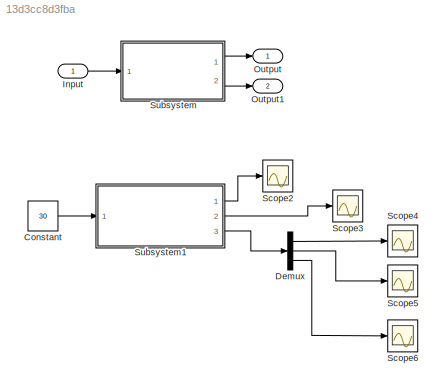
MODEL slx_13d3cc8d3fba
KIND model
CONFIG AbsTol = auto
CONFIG EnableMultiTasking = off
CONFIG FixedStep = auto
CONFIG MaxStep = auto
CONFIG MinStep = auto
CONFIG RelTol = 1e-3
CONFIG SampleTimeConstraint = Unconstrained
CONFIG SolverName = ode45
CONFIG StartTime = 0.0
CONFIG StopTime = 10
BLOCK [Constant] Constant
  Commented = on
  Value = 30
BLOCK [Demux] Demux
  Commented = on
  Outputs = 3
  Ports = [1, 3]
BLOCK [Inport] Input
BLOCK [Outport] Output
BLOCK [Outport] Output1
  Port = 2
BLOCK [Scope] Scope2
  Commented = on
  Floating = off
  NumInputPorts = 1
  Ports = [1]
  ScopeSpecificationString = Simulink.scopes.TimeScopeBlockCfg('CurrentConfiguration', extmgr.ConfigurationSet(extmgr.Configuration('Core','General UI',true),extmgr.Configuration('Core','Source UI',true),extmgr.Configuration('Sources','WiredSimulink',true,'DataLoggingVariableName','ScopeData1'),extmgr.Configuration('Visuals','Time Domain',true,'SerializedDisplays',{struct('MinYLimReal','-0.08031','MaxYLimReal','0.72277','YLab...<+1425ch>
BLOCK [Scope] Scope3
  Commented = on
  Floating = off
  NumInputPorts = 1
  Ports = [1]
  ScopeSpecificationString = Simulink.scopes.TimeScopeBlockCfg('CurrentConfiguration', extmgr.ConfigurationSet(extmgr.Configuration('Core','General UI',true),extmgr.Configuration('Core','Source UI',true),extmgr.Configuration('Sources','WiredSimulink',true,'DataLoggingVariableName','ScopeData2'),extmgr.Configuration('Visuals','Time Domain',true,'SerializedDisplays',{struct('MinYLimReal','-1.16097','MaxYLimReal','1.89286','YLab...<+1400ch>
BLOCK [Scope] Scope4
  Commented = on
  Floating = off
  NumInputPorts = 1
  Ports = [1]
  ScopeSpecificationString = Simulink.scopes.TimeScopeBlockCfg('CurrentConfiguration', extmgr.ConfigurationSet(extmgr.Configuration('Core','General UI',true),extmgr.Configuration('Core','Source UI',true),extmgr.Configuration('Sources','WiredSimulink',true,'DataLoggingVariableName','ScopeData3'),extmgr.Configuration('Visuals','Time Domain',true,'SerializedDisplays',{struct('MinYLimReal','-0.47901','MaxYLimReal','0.47901','YLab...<+1366ch>
BLOCK [Scope] Scope5
  Commented = on
  Floating = off
  NumInputPorts = 1
  Ports = [1]
  ScopeSpecificationString = Simulink.scopes.TimeScopeBlockCfg('CurrentConfiguration', extmgr.ConfigurationSet(extmgr.Configuration('Core','General UI',true),extmgr.Configuration('Core','Source UI',true),extmgr.Configuration('Sources','WiredSimulink',true,'DataLoggingVariableName','ScopeData4'),extmgr.Configuration('Visuals','Time Domain',true,'SerializedDisplays',{struct('MinYLimReal','-2.74982','MaxYLimReal','2.74854','YLab...<+1366ch>
BLOCK [Scope] Scope6
  Commented = on
  Floating = off
  NumInputPorts = 1
  Ports = [1]
  ScopeSpecificationString = Simulink.scopes.TimeScopeBlockCfg('CurrentConfiguration', extmgr.ConfigurationSet(extmgr.Configuration('Core','General UI',true),extmgr.Configuration('Core','Source UI',true),extmgr.Configuration('Sources','WiredSimulink',true,'DataLoggingVariableName','ScopeData5'),extmgr.Configuration('Visuals','Time Domain',true,'SerializedDisplays',{struct('MinYLimReal','-13.23232','MaxYLimReal','13.23657','YL...<+1372ch>
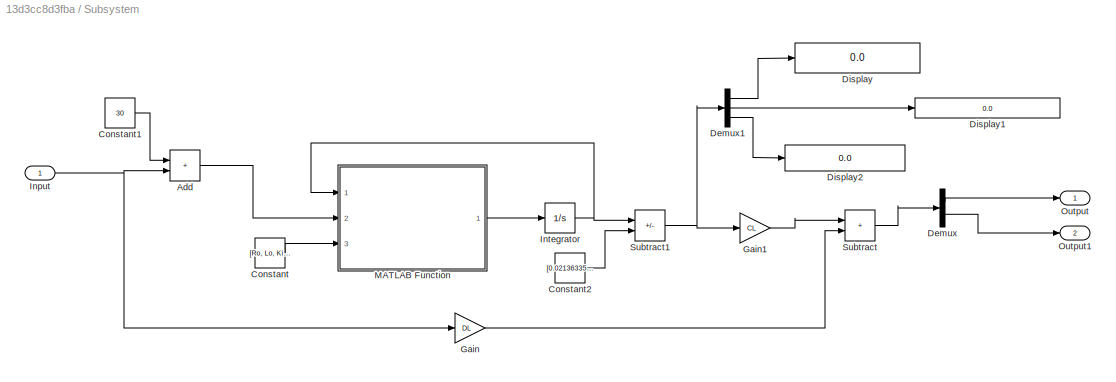
BLOCK [SubSystem] Subsystem
  Ports = [1, 2]
  RequestExecContextInheritance = off
BLOCK [Sum] Subsystem/Add
  IconShape = rectangular
  Ports = [2, 1]
BLOCK [Constant] Subsystem/Constant
  Value = [Ro, Lo, Kio, Kvo, Jmo, Jlo, Bmo, Blo, no, go, do, mo]
BLOCK [Constant] Subsystem/Constant1
  Value = 30
BLOCK [Constant] Subsystem/Constant2
  Value = [0.021363357520018;38.80690895243;4.1124038156736]
BLOCK [Demux] Subsystem/Demux
  Outputs = 2
  Ports = [1, 2]
BLOCK [Demux] Subsystem/Demux1
  Outputs = 3
  Ports = [1, 3]
BLOCK [Display] Subsystem/Display
  Decimation = 1
  Format = long
  Ports = [1]
BLOCK [Display] Subsystem/Display1
  Decimation = 1
  Format = long
  Ports = [1]
BLOCK [Display] Subsystem/Display2
  Decimation = 1
  Format = long
  Ports = [1]
BLOCK [Gain] Subsystem/Gain
  Gain = DL
  Multiplication = Matrix(K*u)
BLOCK [Gain] Subsystem/Gain1
  Gain = CL
  Multiplication = Matrix(K*u)
BLOCK [Inport] Subsystem/Input
BLOCK [Integrator] Subsystem/Integrator
  InitialCondition = [X10; X20; X30]
  Ports = [1, 1]
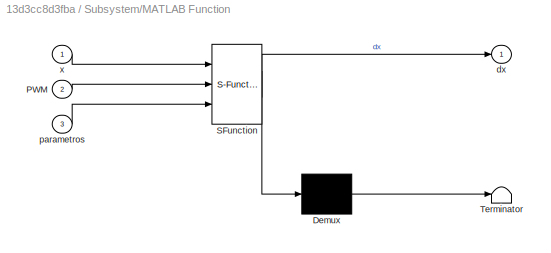
BLOCK [SubSystem] Subsystem/MATLAB Function
  ErrorFcn = Stateflow.Translate.translate
  PermitHierarchicalResolution = ExplicitOnly
  Ports = [3, 1]
  RequestExecContextInheritance = off
  SFBlockType = MATLAB Function
  TreatAsAtomicUnit = on
BLOCK [Demux] Subsystem/MATLAB Function/ Demux 
  Outputs = 1
  Ports = [1, 1]
BLOCK [S-Function] Subsystem/MATLAB Function/ SFunction 
  EnableBusSupport = on
  FunctionName = sf_sfun
  PortCounts = [3 2]
  Ports = [3, 2]
  SFcnIsStateOwnerBlock = off
  SFunctionDeploymentMode = off
  Tag = Stateflow S-Function 2
BLOCK [Terminator] Subsystem/MATLAB Function/ Terminator 
BLOCK [Inport] Subsystem/MATLAB Function/PWM
  Port = 2
BLOCK [Outport] Subsystem/MATLAB Function/dx
BLOCK [Inport] Subsystem/MATLAB Function/parametros
  Port = 3
BLOCK [Inport] Subsystem/MATLAB Function/x
BLOCK [Outport] Subsystem/Output
BLOCK [Outport] Subsystem/Output1
  Port = 2
BLOCK [Sum] Subsystem/Subtract
  IconShape = rectangular
  Ports = [2, 1]
BLOCK [Sum] Subsystem/Subtract1
  IconShape = rectangular
  Inputs = +-
  Ports = [2, 1]
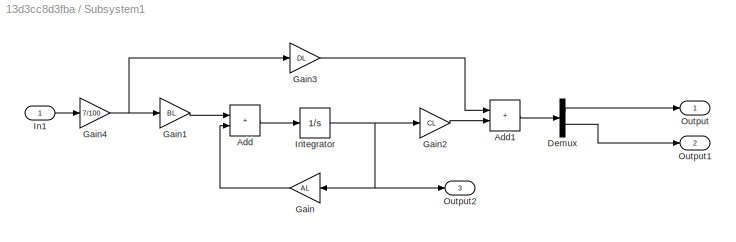
BLOCK [SubSystem] Subsystem1
  Commented = on
  Ports = [1, 3]
  RequestExecContextInheritance = off
BLOCK [Sum] Subsystem1/Add
  IconShape = rectangular
  Ports = [2, 1]
BLOCK [Sum] Subsystem1/Add1
  IconShape = rectangular
  Ports = [2, 1]
BLOCK [Demux] Subsystem1/Demux
  Outputs = 2
  Ports = [1, 2]
BLOCK [Gain] Subsystem1/Gain
  Gain = AL
  Multiplication = Matrix(K*u)
  NameLocation = top
BLOCK [Gain] Subsystem1/Gain1
  Gain = BL
  Multiplication = Matrix(K*u)
BLOCK [Gain] Subsystem1/Gain2
  Gain = CL
  Multiplication = Matrix(K*u)
BLOCK [Gain] Subsystem1/Gain3
  Gain = DL
  Multiplication = Matrix(K*u)
BLOCK [Gain] Subsystem1/Gain4
  Gain = 7/100
BLOCK [Inport] Subsystem1/In1
BLOCK [Integrator] Subsystem1/Integrator
  Ports = [1, 1]
BLOCK [Outport] Subsystem1/Output
BLOCK [Outport] Subsystem1/Output1
  Port = 2
BLOCK [Outport] Subsystem1/Output2
  Port = 3
LINE Constant:1 -> Subsystem1:1
LINE Demux:1 -> Scope4:1
LINE Demux:2 -> Scope5:1
LINE Demux:3 -> Scope6:1
LINE Input:1 -> Subsystem:1
LINE Subsystem/Add:1 -> Subsystem/MATLAB Function:2
LINE Subsystem/Constant1:1 -> Subsystem/Add:1
LINE Subsystem/Constant2:1 -> Subsystem/Subtract1:2
LINE Subsystem/Constant:1 -> Subsystem/MATLAB Function:3
LINE Subsystem/Demux1:1 -> Subsystem/Display:1
LINE Subsystem/Demux1:2 -> Subsystem/Display1:1
LINE Subsystem/Demux1:3 -> Subsystem/Display2:1
LINE Subsystem/Demux:1 -> Subsystem/Output:1
LINE Subsystem/Demux:2 -> Subsystem/Output1:1
LINE Subsystem/Gain1:1 -> Subsystem/Subtract:1
LINE Subsystem/Gain:1 -> Subsystem/Subtract:2
NET Subsystem/Input:1 -> Subsystem/Add:2, Subsystem/Gain:1
NET Subsystem/Integrator:1 -> Subsystem/MATLAB Function:1, Subsystem/Subtract1:1
LINE Subsystem/MATLAB Function:1 -> Subsystem/Integrator:1
NET Subsystem/Subtract1:1 -> Subsystem/Demux1:1, Subsystem/Gain1:1
LINE Subsystem/Subtract:1 -> Subsystem/Demux:1
LINE Subsystem1/Add1:1 -> Subsystem1/Demux:1
LINE Subsystem1/Add:1 -> Subsystem1/Integrator:1
LINE Subsystem1/Demux:1 -> Subsystem1/Output:1
LINE Subsystem1/Demux:2 -> Subsystem1/Output1:1
LINE Subsystem1/Gain1:1 -> Subsystem1/Add:1
LINE Subsystem1/Gain2:1 -> Subsystem1/Add1:2
LINE Subsystem1/Gain3:1 -> Subsystem1/Add1:1
NET Subsystem1/Gain4:1 -> Subsystem1/Gain1:1, Subsystem1/Gain3:1
LINE Subsystem1/Gain:1 -> Subsystem1/Add:2
LINE Subsystem1/In1:1 -> Subsystem1/Gain4:1
NET Subsystem1/Integrator:1 -> Subsystem1/Gain2:1, Subsystem1/Gain:1, Subsystem1/Output2:1
LINE Subsystem1:1 -> Scope2:1
LINE Subsystem1:2 -> Scope3:1
LINE Subsystem1:3 -> Demux:1
LINE Subsystem:1 -> Output:1
LINE Subsystem:2 -> Output1:1
note: NET lines group one-source signal fan-out (src -> all destinations, sorted); 1:1 wires keep LINE
CHART Subsystem/MATLAB Function states=1 transitions=1
  STATE_LABEL 'eML_blk_kernel()'
  STATE_LABEL 'SCRIPT:\nfunction dx = fcn(x,PWM,parametros)\n\n%ESTADOS\nx1 = x(1);\nx2 = x(2);\nx3 = x(3);\n\n%Parametros\nR = parametros(1);\nL = parametros(2);\nKi = parametros(3);\nKv = parametros(4);\nJm = parametros(5);\nJl = parametros(6);\nBm = parametros(7);\nBl = parametros(8);\nn = parametros(9);\ng = parametros(10);\nd = parametros(11);\nm = parametros(12);\n\n%EXPRESIONES\n% Jt = Jm*n^2 +Jl;\n% f1 = (1/L)*(((7*PWM)/100) - ...<+289ch>'
CHART  states=0 transitions=0
